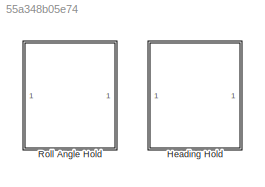
MODEL slx_55a348b05e74
KIND model
CONFIG AbsTol = auto
CONFIG FixedStep = 0.01
CONFIG MaxStep = auto
CONFIG MinStep = auto
CONFIG RelTol = 1e-3
CONFIG SampleTimeConstraint = Unconstrained
CONFIG Solver = ode4
CONFIG SolverMode = Auto
CONFIG SolverName = ode4
CONFIG StartTime = 0.0
CONFIG StopTime = 300
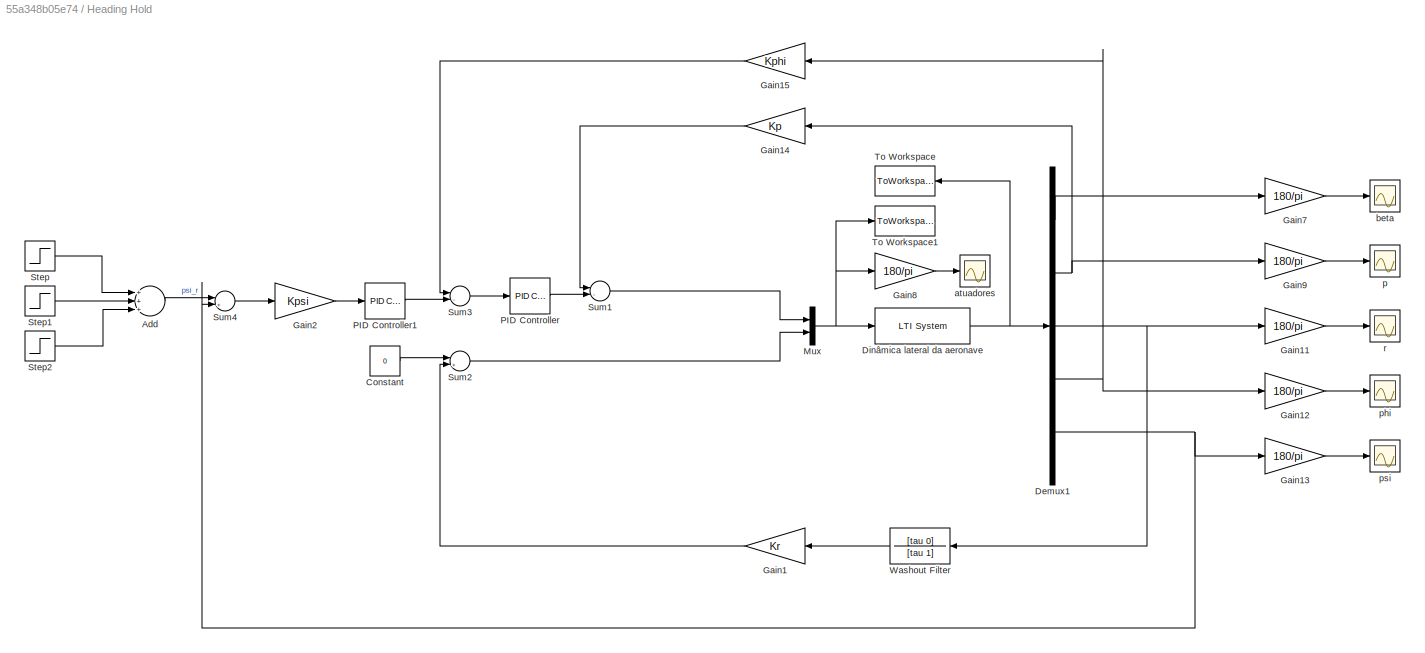
BLOCK [SubSystem] Heading Hold
  Ports = []
  RequestExecContextInheritance = off
  Variant = off
BLOCK [Sum] Heading Hold/Add
  InputSameDT = off
  Inputs = +++
  OutDataTypeStr = Inherit: Inherit via internal rule
  Ports = [3, 1]
  SaturateOnIntegerOverflow = off
BLOCK [Constant] Heading Hold/Constant
  Value = 0
BLOCK [Demux] Heading Hold/Demux1
  DisplayOption = bar
  Outputs = 5
  Ports = [1, 5]
BLOCK [Reference] Heading Hold/Dinâmica lateral da aeronave  REF=cstblocks/LTI System
  Ports = [1, 1]
  SourceBlock = cstblocks/LTI System
  SourceType = LTI Block
BLOCK [Gain] Heading Hold/Gain1
  Gain = Kr
  OutDataTypeStr = Inherit: Inherit via internal rule
  ParamDataTypeStr = Inherit: Inherit via internal rule
  SaturateOnIntegerOverflow = off
BLOCK [Gain] Heading Hold/Gain11
  Gain = 180/pi
  OutDataTypeStr = Inherit: Inherit via internal rule
  ParamDataTypeStr = Inherit: Inherit via internal rule
  SaturateOnIntegerOverflow = off
BLOCK [Gain] Heading Hold/Gain12
  Gain = 180/pi
  OutDataTypeStr = Inherit: Inherit via internal rule
  ParamDataTypeStr = Inherit: Inherit via internal rule
  SaturateOnIntegerOverflow = off
BLOCK [Gain] Heading Hold/Gain13
  Gain = 180/pi
  OutDataTypeStr = Inherit: Inherit via internal rule
  ParamDataTypeStr = Inherit: Inherit via internal rule
  SaturateOnIntegerOverflow = off
BLOCK [Gain] Heading Hold/Gain14
  Gain = Kp
  OutDataTypeStr = Inherit: Inherit via internal rule
  ParamDataTypeStr = Inherit: Inherit via internal rule
  SaturateOnIntegerOverflow = off
BLOCK [Gain] Heading Hold/Gain15
  Gain = Kphi
  OutDataTypeStr = Inherit: Inherit via internal rule
  ParamDataTypeStr = Inherit: Inherit via internal rule
  SaturateOnIntegerOverflow = off
BLOCK [Gain] Heading Hold/Gain2
  Gain = Kpsi
  OutDataTypeStr = Inherit: Inherit via internal rule
  ParamDataTypeStr = Inherit: Inherit via internal rule
  SaturateOnIntegerOverflow = off
BLOCK [Gain] Heading Hold/Gain7
  Gain = 180/pi
  OutDataTypeStr = Inherit: Inherit via internal rule
  ParamDataTypeStr = Inherit: Inherit via internal rule
  SaturateOnIntegerOverflow = off
BLOCK [Gain] Heading Hold/Gain8
  Gain = 180/pi
  OutDataTypeStr = Inherit: Inherit via internal rule
  ParamDataTypeStr = Inherit: Inherit via internal rule
  SaturateOnIntegerOverflow = off
BLOCK [Gain] Heading Hold/Gain9
  Gain = 180/pi
  OutDataTypeStr = Inherit: Inherit via internal rule
  ParamDataTypeStr = Inherit: Inherit via internal rule
  SaturateOnIntegerOverflow = off
BLOCK [Mux] Heading Hold/Mux
  DisplayOption = bar
  Inputs = 2
  Ports = [2, 1]
BLOCK [Reference] Heading Hold/PID Controller  REF=simulink/Continuous/PID Controller
  Ports = [1, 1]
  SourceBlock = simulink/Continuous/PID Controller
  SourceType = PID 1dof
BLOCK [Reference] Heading Hold/PID Controller1  REF=simulink/Continuous/PID Controller
  Ports = [1, 1]
  SourceBlock = simulink/Continuous/PID Controller
  SourceType = PID 1dof
BLOCK [Step] Heading Hold/Step
  After = degtorad(45)
  SampleTime = 0
  Time = 50
BLOCK [Step] Heading Hold/Step1
  After = degtorad(-90)
  SampleTime = 0
  Time = 150
BLOCK [Step] Heading Hold/Step2
  After = degtorad(45)
  SampleTime = 0
  Time = 250
BLOCK [Sum] Heading Hold/Sum1
  InputSameDT = off
  Inputs = |-+
  OutDataTypeStr = Inherit: Inherit via internal rule
  Ports = [2, 1]
  SaturateOnIntegerOverflow = off
BLOCK [Sum] Heading Hold/Sum2
  InputSameDT = off
  Inputs = |+-
  OutDataTypeStr = Inherit: Inherit via internal rule
  Ports = [2, 1]
  SaturateOnIntegerOverflow = off
BLOCK [Sum] Heading Hold/Sum3
  InputSameDT = off
  Inputs = |-+
  OutDataTypeStr = Inherit: Inherit via internal rule
  Ports = [2, 1]
  SaturateOnIntegerOverflow = off
BLOCK [Sum] Heading Hold/Sum4
  InputSameDT = off
  Inputs = |+-
  OutDataTypeStr = Inherit: Inherit via internal rule
  Ports = [2, 1]
  SaturateOnIntegerOverflow = off
BLOCK [ToWorkspace] Heading Hold/To Workspace
  MaxDataPoints = inf
  Ports = [1]
  SampleTime = -1
  SaveFormat = Timeseries
  VariableName = Y
BLOCK [ToWorkspace] Heading Hold/To Workspace1
  MaxDataPoints = inf
  Ports = [1]
  SampleTime = -1
  SaveFormat = Timeseries
  VariableName = U
BLOCK [TransferFcn] Heading Hold/Washout Filter
  Denominator = [tau 1]
  Numerator = [tau 0]
BLOCK [Scope] Heading Hold/atuadores
  Ports = [1]
  ScopeSpecificationString = Simulink.scopes.TimeScopeBlockCfg('CurrentConfiguration', extmgr.ConfigurationSet(extmgr.Configuration('Core','General UI',true),extmgr.Configuration('Core','Source UI',true),extmgr.Configuration('Sources','WiredSimulink',true,'DataLoggingVariableName','ScopeData1','DataLoggingLimitDataPoints',true,'DataLoggingSaveFormat','Array','DataLoggingDecimation','1','DataLoggingDecimateData',true),extmgr.C...<+1575ch>
BLOCK [Scope] Heading Hold/beta
  Ports = [1]
  ScopeSpecificationString = Simulink.scopes.TimeScopeBlockCfg('CurrentConfiguration', extmgr.ConfigurationSet(extmgr.Configuration('Core','General UI',true),extmgr.Configuration('Core','Source UI',true),extmgr.Configuration('Sources','WiredSimulink',true,'DataLoggingVariableName','ScopeData1'),extmgr.Configuration('Visuals','Time Domain',true,'SerializedDisplays',{struct('MinYLimReal','-0.00286','MaxYLimReal','0.02573','YLab...<+1364ch>
BLOCK [Scope] Heading Hold/p
  Ports = [1]
  ScopeSpecificationString = Simulink.scopes.TimeScopeBlockCfg('CurrentConfiguration', extmgr.ConfigurationSet(extmgr.Configuration('Core','General UI',true),extmgr.Configuration('Core','Source UI',true),extmgr.Configuration('Sources','WiredSimulink',true,'DataLoggingVariableName','ScopeData2'),extmgr.Configuration('Visuals','Time Domain',true,'SerializedDisplays',{struct('MinYLimReal','-0.66499','MaxYLimReal','0.43456','YLab...<+1409ch>
BLOCK [Scope] Heading Hold/phi
  Ports = [1]
  ScopeSpecificationString = Simulink.scopes.TimeScopeBlockCfg('CurrentConfiguration', extmgr.ConfigurationSet(extmgr.Configuration('Core','General UI',true),extmgr.Configuration('Core','Source UI',true),extmgr.Configuration('Sources','WiredSimulink',true,'DataLoggingVariableName','ScopeData6'),extmgr.Configuration('Visuals','Time Domain',true,'SerializedDisplays',{struct('MinYLimReal','-153.70961','MaxYLimReal','88.98978','Y...<+1452ch>
BLOCK [Scope] Heading Hold/psi
  Ports = [1]
  ScopeSpecificationString = Simulink.scopes.TimeScopeBlockCfg('CurrentConfiguration', extmgr.ConfigurationSet(extmgr.Configuration('Core','General UI',true),extmgr.Configuration('Core','Source UI',true),extmgr.Configuration('Sources','WiredSimulink',true,'DataLoggingVariableName','ScopeData4'),extmgr.Configuration('Visuals','Time Domain',true,'SerializedDisplays',{struct('MinYLimReal','-50.44218','MaxYLimReal','50.77059','YL...<+1427ch>
BLOCK [Scope] Heading Hold/r
  Ports = [1]
  ScopeSpecificationString = Simulink.scopes.TimeScopeBlockCfg('CurrentConfiguration', extmgr.ConfigurationSet(extmgr.Configuration('Core','General UI',true),extmgr.Configuration('Core','Source UI',true),extmgr.Configuration('Sources','WiredSimulink',true,'DataLoggingVariableName','ScopeData5','DataLoggingLimitDataPoints',true,'DataLoggingSaveFormat','Array','DataLoggingDecimation','1','DataLoggingDecimateData',true),extmgr.C...<+1556ch>
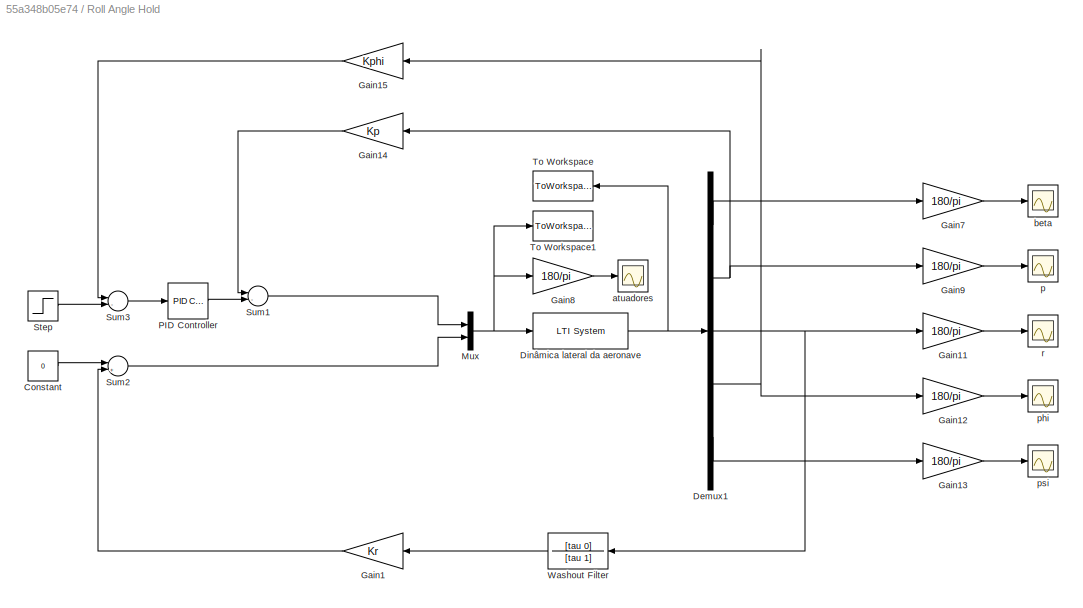
BLOCK [SubSystem] Roll Angle Hold
  Commented = on
  Ports = []
  RequestExecContextInheritance = off
  Variant = off
BLOCK [Constant] Roll Angle Hold/Constant
  Value = 0
BLOCK [Demux] Roll Angle Hold/Demux1
  DisplayOption = bar
  Outputs = 5
  Ports = [1, 5]
BLOCK [Reference] Roll Angle Hold/Dinâmica lateral da aeronave  REF=cstblocks/LTI System
  Ports = [1, 1]
  SourceBlock = cstblocks/LTI System
  SourceType = LTI Block
BLOCK [Gain] Roll Angle Hold/Gain1
  Gain = Kr
  OutDataTypeStr = Inherit: Inherit via internal rule
  ParamDataTypeStr = Inherit: Inherit via internal rule
  SaturateOnIntegerOverflow = off
BLOCK [Gain] Roll Angle Hold/Gain11
  Gain = 180/pi
  OutDataTypeStr = Inherit: Inherit via internal rule
  ParamDataTypeStr = Inherit: Inherit via internal rule
  SaturateOnIntegerOverflow = off
BLOCK [Gain] Roll Angle Hold/Gain12
  Gain = 180/pi
  OutDataTypeStr = Inherit: Inherit via internal rule
  ParamDataTypeStr = Inherit: Inherit via internal rule
  SaturateOnIntegerOverflow = off
BLOCK [Gain] Roll Angle Hold/Gain13
  Gain = 180/pi
  OutDataTypeStr = Inherit: Inherit via internal rule
  ParamDataTypeStr = Inherit: Inherit via internal rule
  SaturateOnIntegerOverflow = off
BLOCK [Gain] Roll Angle Hold/Gain14
  Gain = Kp
  OutDataTypeStr = Inherit: Inherit via internal rule
  ParamDataTypeStr = Inherit: Inherit via internal rule
  SaturateOnIntegerOverflow = off
BLOCK [Gain] Roll Angle Hold/Gain15
  Gain = Kphi
  OutDataTypeStr = Inherit: Inherit via internal rule
  ParamDataTypeStr = Inherit: Inherit via internal rule
  SaturateOnIntegerOverflow = off
BLOCK [Gain] Roll Angle Hold/Gain7
  Gain = 180/pi
  OutDataTypeStr = Inherit: Inherit via internal rule
  ParamDataTypeStr = Inherit: Inherit via internal rule
  SaturateOnIntegerOverflow = off
BLOCK [Gain] Roll Angle Hold/Gain8
  Gain = 180/pi
  OutDataTypeStr = Inherit: Inherit via internal rule
  ParamDataTypeStr = Inherit: Inherit via internal rule
  SaturateOnIntegerOverflow = off
BLOCK [Gain] Roll Angle Hold/Gain9
  Gain = 180/pi
  OutDataTypeStr = Inherit: Inherit via internal rule
  ParamDataTypeStr = Inherit: Inherit via internal rule
  SaturateOnIntegerOverflow = off
BLOCK [Mux] Roll Angle Hold/Mux
  DisplayOption = bar
  Inputs = 2
  Ports = [2, 1]
BLOCK [Reference] Roll Angle Hold/PID Controller  REF=simulink/Continuous/PID Controller
  Ports = [1, 1]
  SourceBlock = simulink/Continuous/PID Controller
  SourceType = PID 1dof
BLOCK [Step] Roll Angle Hold/Step
  After = degtorad(20)
  SampleTime = 0
  Time = 20
BLOCK [Sum] Roll Angle Hold/Sum1
  InputSameDT = off
  Inputs = |-+
  OutDataTypeStr = Inherit: Inherit via internal rule
  Ports = [2, 1]
  SaturateOnIntegerOverflow = off
BLOCK [Sum] Roll Angle Hold/Sum2
  InputSameDT = off
  Inputs = |+-
  OutDataTypeStr = Inherit: Inherit via internal rule
  Ports = [2, 1]
  SaturateOnIntegerOverflow = off
BLOCK [Sum] Roll Angle Hold/Sum3
  InputSameDT = off
  Inputs = |-+
  OutDataTypeStr = Inherit: Inherit via internal rule
  Ports = [2, 1]
  SaturateOnIntegerOverflow = off
BLOCK [ToWorkspace] Roll Angle Hold/To Workspace
  MaxDataPoints = inf
  Ports = [1]
  SampleTime = -1
  SaveFormat = Timeseries
  VariableName = Y
BLOCK [ToWorkspace] Roll Angle Hold/To Workspace1
  MaxDataPoints = inf
  Ports = [1]
  SampleTime = -1
  SaveFormat = Timeseries
  VariableName = U
BLOCK [TransferFcn] Roll Angle Hold/Washout Filter
  Denominator = [tau 1]
  Numerator = [tau 0]
BLOCK [Scope] Roll Angle Hold/atuadores
  Ports = [1]
  ScopeSpecificationString = Simulink.scopes.TimeScopeBlockCfg('CurrentConfiguration', extmgr.ConfigurationSet(extmgr.Configuration('Core','General UI',true),extmgr.Configuration('Core','Source UI',true),extmgr.Configuration('Sources','WiredSimulink',true,'DataLoggingVariableName','ScopeData1','DataLoggingLimitDataPoints',true,'DataLoggingSaveFormat','Array','DataLoggingDecimation','1','DataLoggingDecimateData',true),extmgr.C...<+1570ch>
BLOCK [Scope] Roll Angle Hold/beta
  Ports = [1]
  ScopeSpecificationString = Simulink.scopes.TimeScopeBlockCfg('CurrentConfiguration', extmgr.ConfigurationSet(extmgr.Configuration('Core','General UI',true),extmgr.Configuration('Core','Source UI',true),extmgr.Configuration('Sources','WiredSimulink',true,'DataLoggingVariableName','ScopeData1'),extmgr.Configuration('Visuals','Time Domain',true,'SerializedDisplays',{struct('MinYLimReal','-0.00286','MaxYLimReal','0.02573','YLab...<+1364ch>
BLOCK [Scope] Roll Angle Hold/p
  Ports = [1]
  ScopeSpecificationString = Simulink.scopes.TimeScopeBlockCfg('CurrentConfiguration', extmgr.ConfigurationSet(extmgr.Configuration('Core','General UI',true),extmgr.Configuration('Core','Source UI',true),extmgr.Configuration('Sources','WiredSimulink',true,'DataLoggingVariableName','ScopeData2'),extmgr.Configuration('Visuals','Time Domain',true,'SerializedDisplays',{struct('MinYLimReal','-0.66499','MaxYLimReal','0.43456','YLab...<+1409ch>
BLOCK [Scope] Roll Angle Hold/phi
  Ports = [1]
  ScopeSpecificationString = Simulink.scopes.TimeScopeBlockCfg('CurrentConfiguration', extmgr.ConfigurationSet(extmgr.Configuration('Core','General UI',true),extmgr.Configuration('Core','Source UI',true),extmgr.Configuration('Sources','WiredSimulink',true,'DataLoggingVariableName','ScopeData6'),extmgr.Configuration('Visuals','Time Domain',true,'SerializedDisplays',{struct('MinYLimReal','-48.64173','MaxYLimReal','28.2433','YLa...<+1444ch>
BLOCK [Scope] Roll Angle Hold/psi
  Ports = [1]
  ScopeSpecificationString = Simulink.scopes.TimeScopeBlockCfg('CurrentConfiguration', extmgr.ConfigurationSet(extmgr.Configuration('Core','General UI',true),extmgr.Configuration('Core','Source UI',true),extmgr.Configuration('Sources','WiredSimulink',true,'DataLoggingVariableName','ScopeData4'),extmgr.Configuration('Visuals','Time Domain',true,'SerializedDisplays',{struct('MinYLimReal','-51.19956','MaxYLimReal','52.02969','YL...<+1426ch>
BLOCK [Scope] Roll Angle Hold/r
  Ports = [1]
  ScopeSpecificationString = Simulink.scopes.TimeScopeBlockCfg('CurrentConfiguration', extmgr.ConfigurationSet(extmgr.Configuration('Core','General UI',true),extmgr.Configuration('Core','Source UI',true),extmgr.Configuration('Sources','WiredSimulink',true,'DataLoggingVariableName','ScopeData5','DataLoggingLimitDataPoints',true,'DataLoggingSaveFormat','Array','DataLoggingDecimation','1','DataLoggingDecimateData',true),extmgr.C...<+1556ch>
LINE Heading Hold/Add:1 -> Heading Hold/Sum4:1
LINE Heading Hold/Constant:1 -> Heading Hold/Sum2:1
LINE Heading Hold/Demux1:1 -> Heading Hold/Gain7:1
NET Heading Hold/Demux1:2 -> Heading Hold/Gain14:1, Heading Hold/Gain9:1
NET Heading Hold/Demux1:3 -> Heading Hold/Gain11:1, Heading Hold/Washout Filter:1
NET Heading Hold/Demux1:4 -> Heading Hold/Gain12:1, Heading Hold/Gain15:1
NET Heading Hold/Demux1:5 -> Heading Hold/Gain13:1, Heading Hold/Sum4:2
NET Heading Hold/Dinâmica lateral da aeronave:1 -> Heading Hold/Demux1:1, Heading Hold/To Workspace:1
LINE Heading Hold/Gain11:1 -> Heading Hold/r:1
LINE Heading Hold/Gain12:1 -> Heading Hold/phi:1
LINE Heading Hold/Gain13:1 -> Heading Hold/psi:1
LINE Heading Hold/Gain14:1 -> Heading Hold/Sum1:1
LINE Heading Hold/Gain15:1 -> Heading Hold/Sum3:1
LINE Heading Hold/Gain1:1 -> Heading Hold/Sum2:2
LINE Heading Hold/Gain2:1 -> Heading Hold/PID Controller1:1
LINE Heading Hold/Gain7:1 -> Heading Hold/beta:1
LINE Heading Hold/Gain8:1 -> Heading Hold/atuadores:1
LINE Heading Hold/Gain9:1 -> Heading Hold/p:1
NET Heading Hold/Mux:1 -> Heading Hold/Dinâmica lateral da aeronave:1, Heading Hold/Gain8:1, Heading Hold/To Workspace1:1
LINE Heading Hold/PID Controller1:1 -> Heading Hold/Sum3:2
LINE Heading Hold/PID Controller:1 -> Heading Hold/Sum1:2
LINE Heading Hold/Step1:1 -> Heading Hold/Add:2
LINE Heading Hold/Step2:1 -> Heading Hold/Add:3
LINE Heading Hold/Step:1 -> Heading Hold/Add:1
LINE Heading Hold/Sum1:1 -> Heading Hold/Mux:1
LINE Heading Hold/Sum2:1 -> Heading Hold/Mux:2
LINE Heading Hold/Sum3:1 -> Heading Hold/PID Controller:1
LINE Heading Hold/Sum4:1 -> Heading Hold/Gain2:1
LINE Heading Hold/Washout Filter:1 -> Heading Hold/Gain1:1
LINE Roll Angle Hold/Constant:1 -> Roll Angle Hold/Sum2:1
LINE Roll Angle Hold/Demux1:1 -> Roll Angle Hold/Gain7:1
NET Roll Angle Hold/Demux1:2 -> Roll Angle Hold/Gain14:1, Roll Angle Hold/Gain9:1
NET Roll Angle Hold/Demux1:3 -> Roll Angle Hold/Gain11:1, Roll Angle Hold/Washout Filter:1
NET Roll Angle Hold/Demux1:4 -> Roll Angle Hold/Gain12:1, Roll Angle Hold/Gain15:1
LINE Roll Angle Hold/Demux1:5 -> Roll Angle Hold/Gain13:1
NET Roll Angle Hold/Dinâmica lateral da aeronave:1 -> Roll Angle Hold/Demux1:1, Roll Angle Hold/To Workspace:1
LINE Roll Angle Hold/Gain11:1 -> Roll Angle Hold/r:1
LINE Roll Angle Hold/Gain12:1 -> Roll Angle Hold/phi:1
LINE Roll Angle Hold/Gain13:1 -> Roll Angle Hold/psi:1
LINE Roll Angle Hold/Gain14:1 -> Roll Angle Hold/Sum1:1
LINE Roll Angle Hold/Gain15:1 -> Roll Angle Hold/Sum3:1
LINE Roll Angle Hold/Gain1:1 -> Roll Angle Hold/Sum2:2
LINE Roll Angle Hold/Gain7:1 -> Roll Angle Hold/beta:1
LINE Roll Angle Hold/Gain8:1 -> Roll Angle Hold/atuadores:1
LINE Roll Angle Hold/Gain9:1 -> Roll Angle Hold/p:1
NET Roll Angle Hold/Mux:1 -> Roll Angle Hold/Dinâmica lateral da aeronave:1, Roll Angle Hold/Gain8:1, Roll Angle Hold/To Workspace1:1
LINE Roll Angle Hold/PID Controller:1 -> Roll Angle Hold/Sum1:2
LINE Roll Angle Hold/Step:1 -> Roll Angle Hold/Sum3:2
LINE Roll Angle Hold/Sum1:1 -> Roll Angle Hold/Mux:1
LINE Roll Angle Hold/Sum2:1 -> Roll Angle Hold/Mux:2
LINE Roll Angle Hold/Sum3:1 -> Roll Angle Hold/PID Controller:1
LINE Roll Angle Hold/Washout Filter:1 -> Roll Angle Hold/Gain1:1
note: NET lines group one-source signal fan-out (src -> all destinations, sorted); 1:1 wires keep LINE
